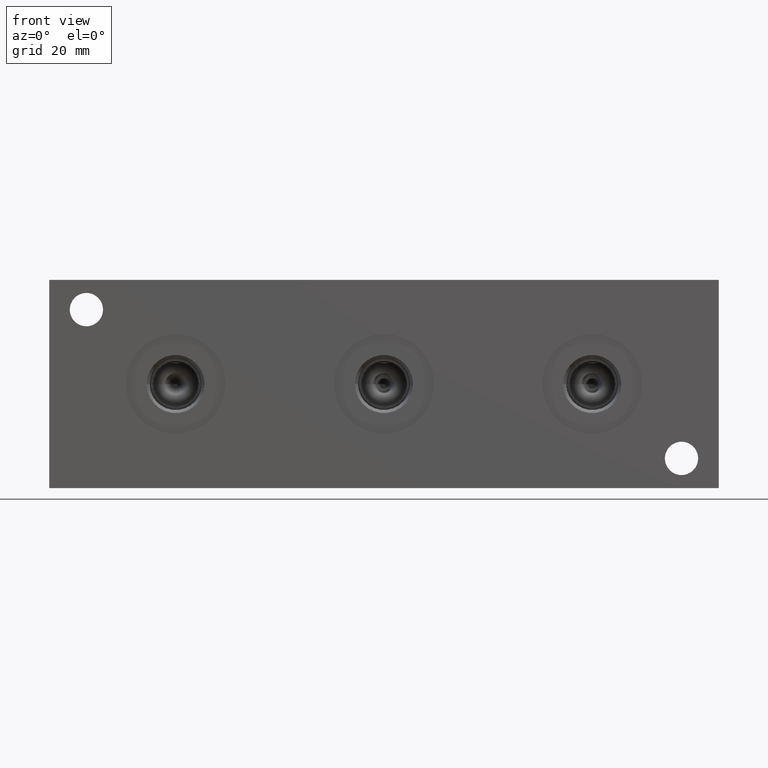
[diagram: clean part render]
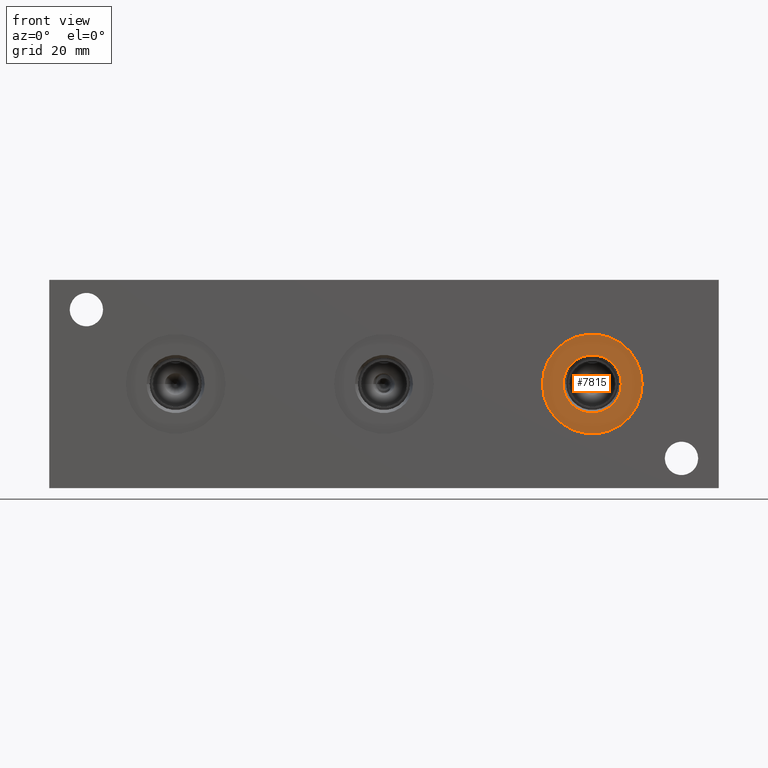
[diagram: same view with one face highlighted and labeled with its STEP entity id]
A machine part, front view. The second image highlights one B-rep face of the part: STEP entity #7815.
In plain terms, the highlighted planar face has unit normal (0, -1, 0).
Its self-contained STEP definition (entity closure, byte-faithful):
#169=CIRCLE('',#8199,10.6426);
#170=CIRCLE('',#8200,10.6426);
#171=CIRCLE('',#8201,6.1976);
#256=FACE_BOUND('',#1289,.T.);
#481=PLANE('',#8198);
#848=FACE_OUTER_BOUND('',#1288,.T.);
#1288=EDGE_LOOP('',(#6784,#6785));
#1289=EDGE_LOOP('',(#6786));
#3693=VERTEX_POINT('',#13409);
#3694=VERTEX_POINT('',#13410);
#3695=VERTEX_POINT('',#13413);
#4747=EDGE_CURVE('',#3693,#3694,#169,.T.);
#4748=EDGE_CURVE('',#3694,#3693,#170,.T.);
#4749=EDGE_CURVE('',#3695,#3695,#171,.T.);
#6784=ORIENTED_EDGE('',*,*,#4747,.T.);
#6785=ORIENTED_EDGE('',*,*,#4748,.T.);
#6786=ORIENTED_EDGE('',*,*,#4749,.F.);
#7815=ADVANCED_FACE('',(#848,#256),#481,.T.);
#8198=AXIS2_PLACEMENT_3D('',#13408,#9624,#9625);
#8199=AXIS2_PLACEMENT_3D('',#13411,#9626,#9627);
#8200=AXIS2_PLACEMENT_3D('',#13412,#9628,#9629);
#8201=AXIS2_PLACEMENT_3D('',#13414,#9630,#9631);
#9624=DIRECTION('center_axis',(0.,-1.,0.));
#9625=DIRECTION('ref_axis',(1.,0.,0.));
#9626=DIRECTION('center_axis',(0.,-1.,0.));
#9627=DIRECTION('ref_axis',(1.,0.,0.));
#9628=DIRECTION('center_axis',(0.,-1.,0.));
#9629=DIRECTION('ref_axis',(1.,0.,0.));
#9630=DIRECTION('center_axis',(0.,-1.,0.));
#9631=DIRECTION('ref_axis',(1.,0.,0.));
#13408=CARTESIAN_POINT('Origin',(115.8748,0.7874,22.225));
#13409=CARTESIAN_POINT('',(126.5174,0.7874,22.225));
#13410=CARTESIAN_POINT('',(105.2322,0.7874,22.225));
#13411=CARTESIAN_POINT('Origin',(115.8748,0.7874,22.225));
#13412=CARTESIAN_POINT('Origin',(115.8748,0.7874,22.225));
#13413=CARTESIAN_POINT('',(109.6772,0.7874,22.225));
#13414=CARTESIAN_POINT('Origin',(115.8748,0.7874,22.225));